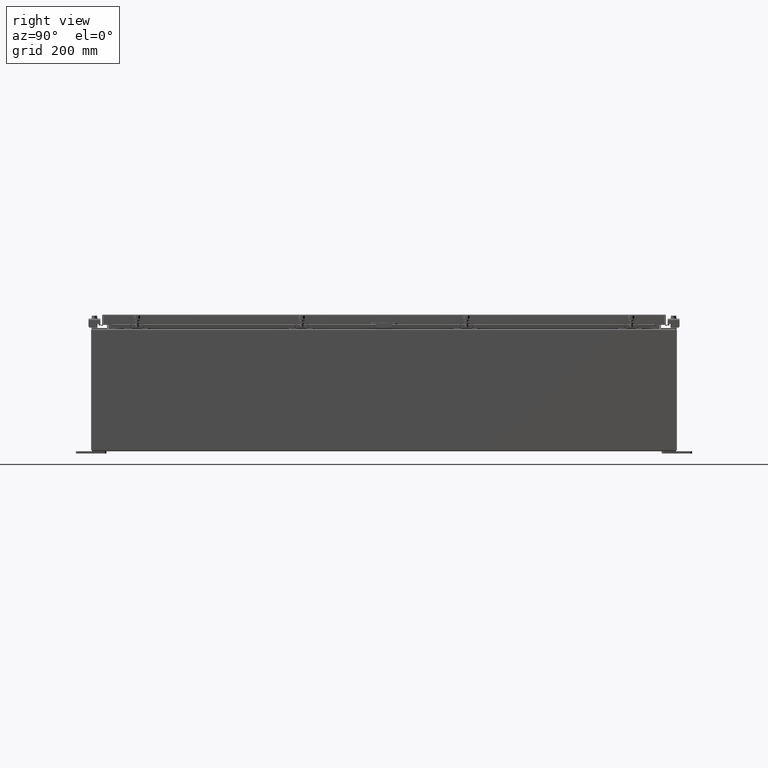
[diagram: clean part render]
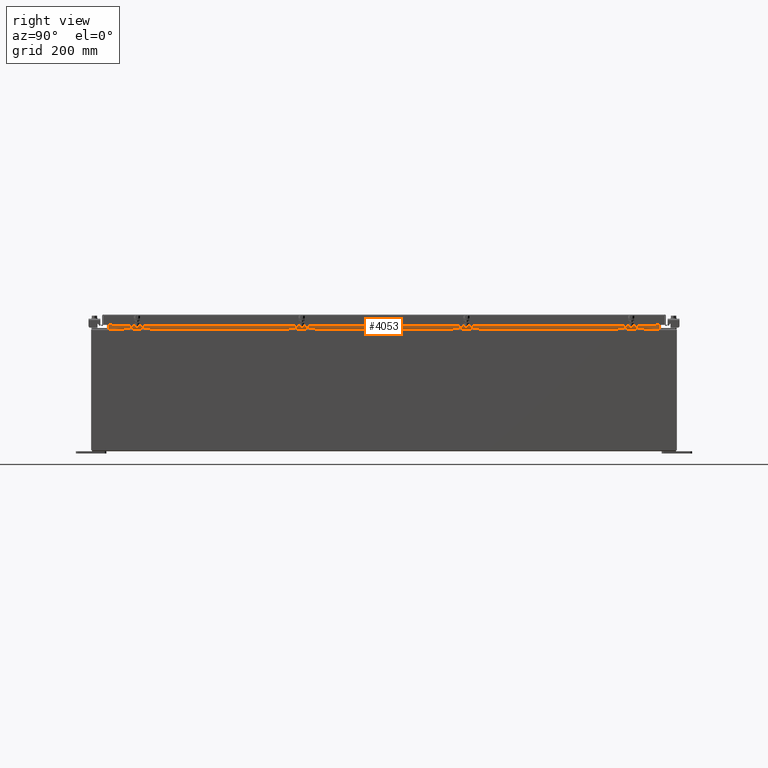
[diagram: same view with one face highlighted and labeled with its STEP entity id]
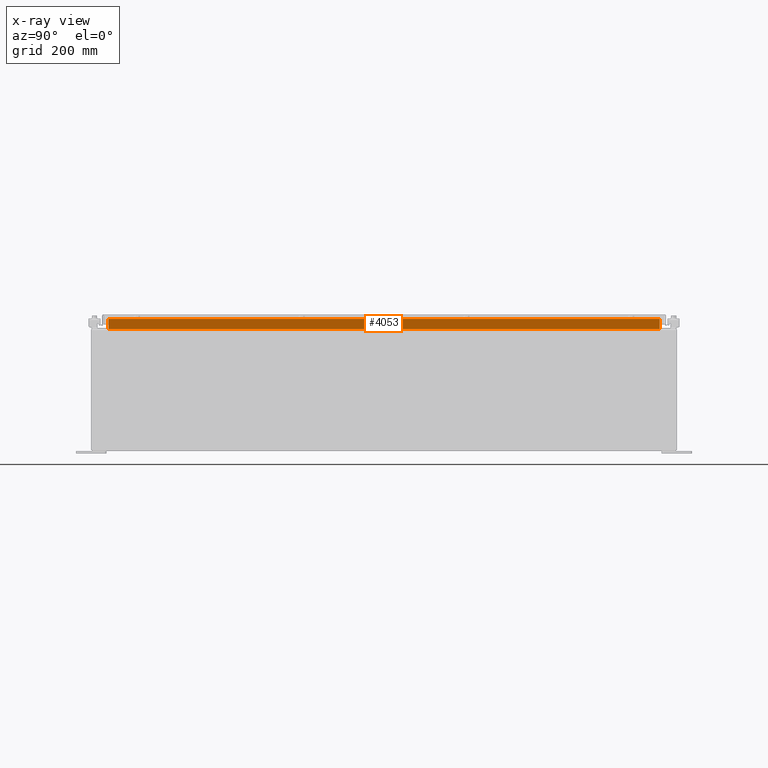
[diagram: x-ray of the same camera — body ghosted, the highlighted face saturated]
A machine part, right view. The second image highlights one B-rep face of the part: STEP entity #4053.
The next image is the same camera in x-ray: the body ghosted, the highlighted face saturated — about 0% of this face is hidden behind the body in this view.
In plain terms, the highlighted planar face has unit normal (1, 0, -0).
Its self-contained STEP definition (entity closure, byte-faithful):
#16 = EDGE_CURVE ( 'NONE', #39728, #46346, #25335, .T. ) ;
#146 = CARTESIAN_POINT ( 'NONE',  ( 13.69970000000003400, -22.59374999999997900, 9.938300000000010600 ) ) ;
#403 = VECTOR ( 'NONE', #49625, 39.37007874015748100 ) ;
#1844 = DIRECTION ( 'NONE',  ( 2.361913319930198800E-015, -0.0000000000000000000, 1.000000000000000000 ) ) ;
#3935 = EDGE_CURVE ( 'NONE', #31805, #39728, #9530, .T. ) ;
#4053 = ADVANCED_FACE ( 'NONE', ( #51010 ), #23972, .T. ) ;
#5967 = ORIENTED_EDGE ( 'NONE', *, *, #16, .F. ) ;
#6322 = VECTOR ( 'NONE', #1844, 39.37007874015748100 ) ;
#6416 = ORIENTED_EDGE ( 'NONE', *, *, #3935, .F. ) ;
#8664 = DIRECTION ( 'NONE',  ( 0.0000000000000000000, 1.000000000000000000, 0.0000000000000000000 ) ) ;
#9530 = LINE ( 'NONE', #48619, #6322 ) ;
#11306 = LINE ( 'NONE', #41545, #403 ) ;
#13060 = VERTEX_POINT ( 'NONE', #44400 ) ;
#13802 = VECTOR ( 'NONE', #8664, 39.37007874015748100 ) ;
#17001 = AXIS2_PLACEMENT_3D ( 'NONE', #23289, #23120, #22759 ) ;
#17008 = CARTESIAN_POINT ( 'NONE',  ( 13.69970000000003600, 22.59374999999998200, 9.938300000000008800 ) ) ;
#19406 = CARTESIAN_POINT ( 'NONE',  ( 13.69970000000003600, -22.59374999999997500, 10.76290000000001100 ) ) ;
#19451 = EDGE_CURVE ( 'NONE', #13060, #31805, #50929, .T. ) ;
#22570 = ORIENTED_EDGE ( 'NONE', *, *, #19451, .F. ) ;
#22759 = DIRECTION ( 'NONE',  ( -2.361913319930193300E-015, 0.0000000000000000000, -1.000000000000000000 ) ) ;
#23120 = DIRECTION ( 'NONE',  ( 1.000000000000000000, 0.0000000000000000000, -2.361913319930193300E-015 ) ) ;
#23289 = CARTESIAN_POINT ( 'NONE',  ( 13.69970000000001100, 0.0000000000000000000, -3.235750390904769000E-014 ) ) ;
#23972 = PLANE ( 'NONE',  #17001 ) ;
#25335 = LINE ( 'NONE', #34918, #13802 ) ;
#26615 = EDGE_CURVE ( 'NONE', #46346, #13060, #11306, .T. ) ;
#31805 = VERTEX_POINT ( 'NONE', #146 ) ;
#34164 = ORIENTED_EDGE ( 'NONE', *, *, #26615, .F. ) ;
#34918 = CARTESIAN_POINT ( 'NONE',  ( 13.69970000000003400, -22.59374999999997500, 10.76290000000001100 ) ) ;
#39728 = VERTEX_POINT ( 'NONE', #19406 ) ;
#41415 = VECTOR ( 'NONE', #49630, 39.37007874015748100 ) ;
#41545 = CARTESIAN_POINT ( 'NONE',  ( 13.69970000000003400, 22.59374999999998200, 9.925300000000008900 ) ) ;
#44400 = CARTESIAN_POINT ( 'NONE',  ( 13.69970000000003400, 22.59374999999997900, 9.938300000000010600 ) ) ;
#46346 = VERTEX_POINT ( 'NONE', #48891 ) ;
#48619 = CARTESIAN_POINT ( 'NONE',  ( 13.69970000000003600, -22.59374999999997500, 10.85060000000001100 ) ) ;
#48891 = CARTESIAN_POINT ( 'NONE',  ( 13.69970000000003400, 22.59374999999998200, 10.76290000000001100 ) ) ;
#49625 = DIRECTION ( 'NONE',  ( -2.361913319930193300E-015, -0.0000000000000000000, -1.000000000000000000 ) ) ;
#49630 = DIRECTION ( 'NONE',  ( 4.836466710774910500E-017, -1.000000000000000000, 9.672933421549820900E-017 ) ) ;
#50929 = LINE ( 'NONE', #17008, #41415 ) ;
#51010 = FACE_OUTER_BOUND ( 'NONE', #51081, .T. ) ;
#51081 = EDGE_LOOP ( 'NONE', ( #34164, #5967, #6416, #22570 ) ) ;